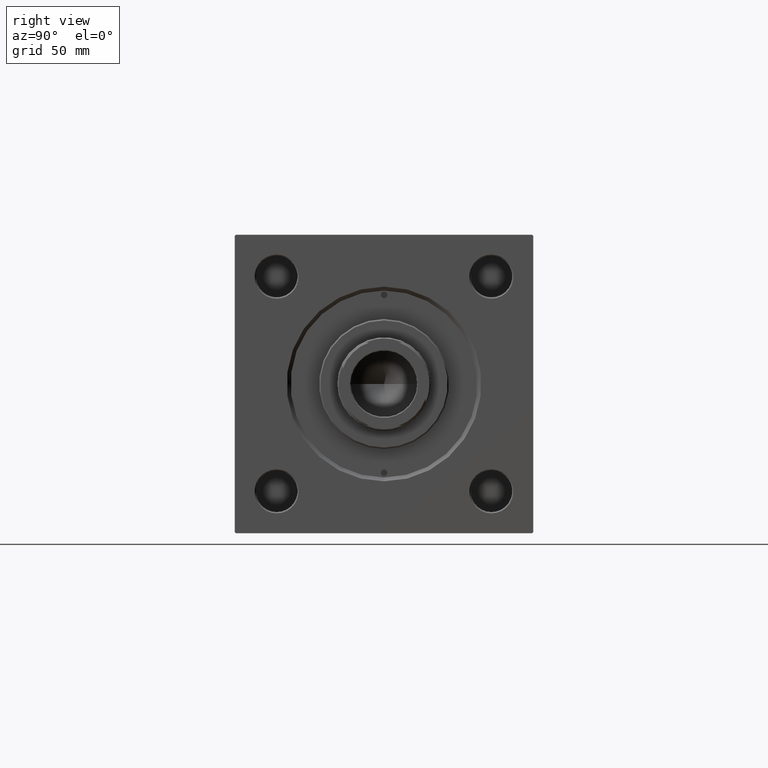
[diagram: clean part render]
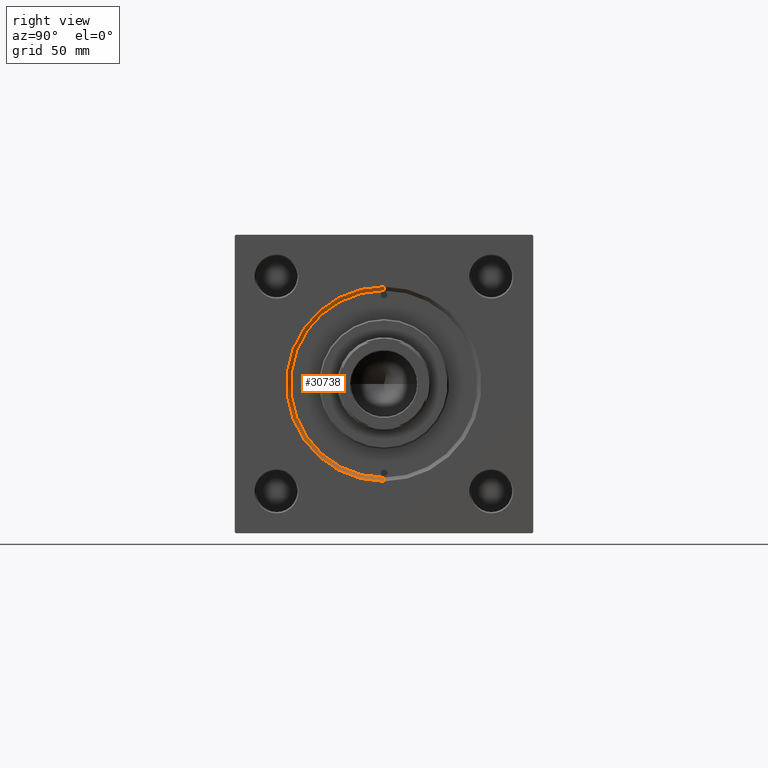
[diagram: same view with one face highlighted and labeled with its STEP entity id]
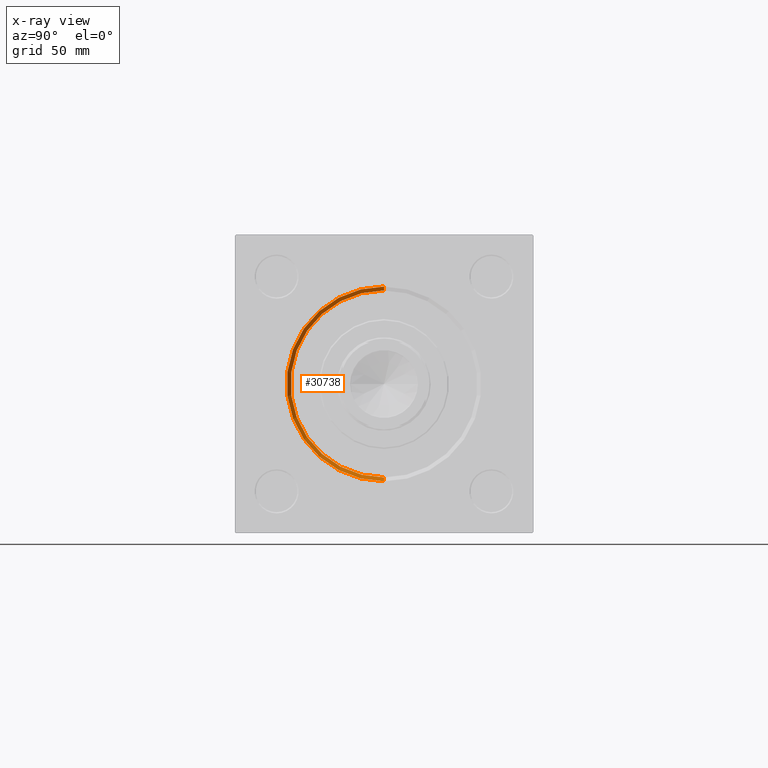
[diagram: x-ray of the same camera — body ghosted, the highlighted face saturated]
A machine part, right view. The second image highlights one B-rep face of the part: STEP entity #30738.
The next image is the same camera in x-ray: the body ghosted, the highlighted face saturated — about 0% of this face is hidden behind the body in this view.
In plain terms, the highlighted conical surface has half-angle 45 deg.
Its self-contained STEP definition (entity closure, byte-faithful):
#777 = VERTEX_POINT ( 'NONE', #33684 ) ;
#2342 = ORIENTED_EDGE ( 'NONE', *, *, #45298, .F. ) ;
#2578 = CARTESIAN_POINT ( 'NONE',  ( 177.4999999999999716, 4.408728476930470856E-15, 36.00000000000000000 ) ) ;
#2822 = ORIENTED_EDGE ( 'NONE', *, *, #5591, .F. ) ;
#4187 = AXIS2_PLACEMENT_3D ( 'NONE', #7024, #38390, #38896 ) ;
#5591 = EDGE_CURVE ( 'NONE', #43332, #777, #46466, .T. ) ;
#6914 = EDGE_LOOP ( 'NONE', ( #2822, #27731, #2342, #35477 ) ) ;
#7024 = CARTESIAN_POINT ( 'NONE',  ( 179.0000000000000000, 0.000000000000000000, 0.000000000000000000 ) ) ;
#7233 = CARTESIAN_POINT ( 'NONE',  ( 177.4999999999999716, 0.000000000000000000, 0.000000000000000000 ) ) ;
#11074 = DIRECTION ( 'NONE',  ( 0.000000000000000000, 0.000000000000000000, -1.000000000000000000 ) ) ;
#11163 = CARTESIAN_POINT ( 'NONE',  ( 177.4999999999999716, 4.408728476930470856E-15, 36.00000000000000000 ) ) ;
#11969 = VECTOR ( 'NONE', #27296, 1000.000000000000000 ) ;
#13912 = VERTEX_POINT ( 'NONE', #31771 ) ;
#14929 = DIRECTION ( 'NONE',  ( 1.000000000000000000, 0.000000000000000000, 0.000000000000000000 ) ) ;
#16709 = CARTESIAN_POINT ( 'NONE',  ( 179.0000000000000000, 0.000000000000000000, -37.50000000000000711 ) ) ;
#23135 = FACE_OUTER_BOUND ( 'NONE', #6914, .T. ) ;
#24327 = AXIS2_PLACEMENT_3D ( 'NONE', #38325, #14929, #11074 ) ;
#26312 = CIRCLE ( 'NONE', #4187, 37.50000000000000711 ) ;
#27296 = DIRECTION ( 'NONE',  ( 0.7071067811865524577, 0.000000000000000000, -0.7071067811865426878 ) ) ;
#27731 = ORIENTED_EDGE ( 'NONE', *, *, #46703, .T. ) ;
#30738 = ADVANCED_FACE ( 'NONE', ( #23135 ), #36621, .F. ) ;
#30863 = AXIS2_PLACEMENT_3D ( 'NONE', #7233, #46035, #46539 ) ;
#31771 = CARTESIAN_POINT ( 'NONE',  ( 179.0000000000000000, 4.592425496802575156E-15, 37.50000000000000711 ) ) ;
#32577 = EDGE_CURVE ( 'NONE', #777, #33077, #46833, .T. ) ;
#32820 = VECTOR ( 'NONE', #42502, 1000.000000000000000 ) ;
#33077 = VERTEX_POINT ( 'NONE', #16709 ) ;
#33684 = CARTESIAN_POINT ( 'NONE',  ( 177.4999999999999716, 0.000000000000000000, -36.00000000000000000 ) ) ;
#35477 = ORIENTED_EDGE ( 'NONE', *, *, #32577, .F. ) ;
#36621 = CONICAL_SURFACE ( 'NONE', #24327, 36.00000000000000000, 0.7853981633974415066 ) ;
#38325 = CARTESIAN_POINT ( 'NONE',  ( 177.4999999999999716, 0.000000000000000000, 0.000000000000000000 ) ) ;
#38390 = DIRECTION ( 'NONE',  ( -1.000000000000000000, 0.000000000000000000, -0.000000000000000000 ) ) ;
#38896 = DIRECTION ( 'NONE',  ( 0.000000000000000000, 0.000000000000000000, 1.000000000000000000 ) ) ;
#42502 = DIRECTION ( 'NONE',  ( 0.7071067811865524577, 8.659560562354873694E-17, 0.7071067811865426878 ) ) ;
#42992 = CARTESIAN_POINT ( 'NONE',  ( 177.4999999999999716, 0.000000000000000000, -36.00000000000000000 ) ) ;
#43332 = VERTEX_POINT ( 'NONE', #2578 ) ;
#45298 = EDGE_CURVE ( 'NONE', #33077, #13912, #26312, .T. ) ;
#46035 = DIRECTION ( 'NONE',  ( 1.000000000000000000, 0.000000000000000000, 0.000000000000000000 ) ) ;
#46347 = LINE ( 'NONE', #11163, #32820 ) ;
#46466 = CIRCLE ( 'NONE', #30863, 36.00000000000000000 ) ;
#46539 = DIRECTION ( 'NONE',  ( 0.000000000000000000, 0.000000000000000000, 1.000000000000000000 ) ) ;
#46703 = EDGE_CURVE ( 'NONE', #43332, #13912, #46347, .T. ) ;
#46833 = LINE ( 'NONE', #42992, #11969 ) ;